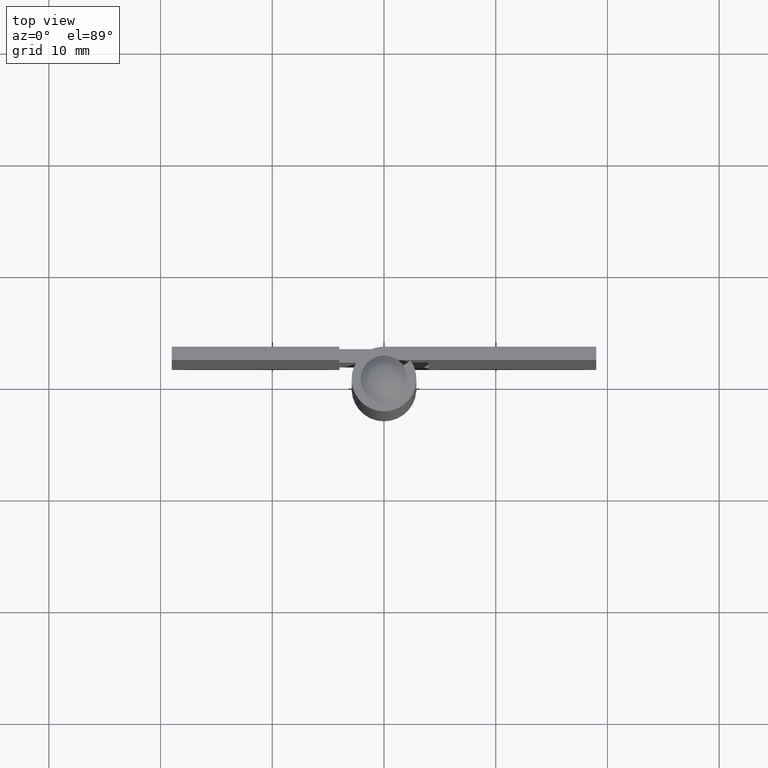
[diagram: clean part render]
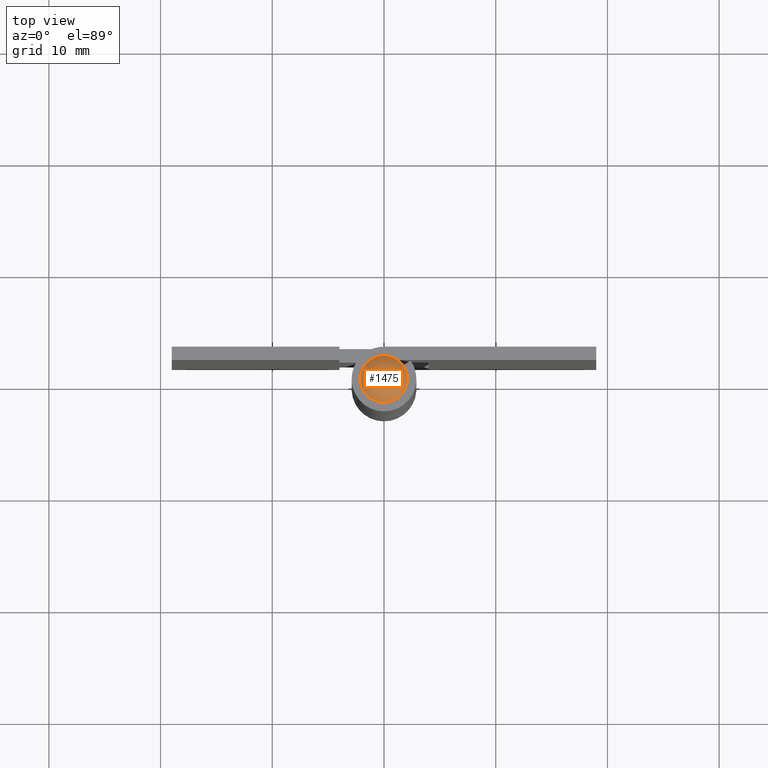
[diagram: same view with one face highlighted and labeled with its STEP entity id]
A machine part, top view. The second image highlights one B-rep face of the part: STEP entity #1475.
In plain terms, the highlighted face is a freeform B-spline surface patch.
Its self-contained STEP definition (entity closure, byte-faithful):
#1394=CARTESIAN_POINT('',(-2.100000000000085,0.0,51.0));
#1395=VERTEX_POINT('',#1394);
#1396=CARTESIAN_POINT('',(2.100000000000085,0.0,51.0));
#1397=VERTEX_POINT('',#1396);
#1398=CARTESIAN_POINT('',(-2.100000000000085,0.0,51.0));
#1399=CARTESIAN_POINT('',(-2.100034678902667,0.163208276225460,51.000000000000057));
#1400=CARTESIAN_POINT('',(-2.062761585552487,0.481036116554615,50.999999999999851));
#1401=CARTESIAN_POINT('',(-1.923009084606164,0.871632128979982,51.000000000000128));
#1402=CARTESIAN_POINT('',(-1.721382886219726,1.222506502784351,50.999999999999943));
#1403=CARTESIAN_POINT('',(-1.426507514003125,1.573064050045721,50.999999999999758));
#1404=CARTESIAN_POINT('',(-1.036037756864323,1.848075886834001,51.000000000000313));
#1405=CARTESIAN_POINT('',(-0.604962322977016,2.023457375339177,50.999999999999197));
#1406=CARTESIAN_POINT('',(-0.241174619572601,2.098146021491028,51.000000000001357));
#1407=CARTESIAN_POINT('',(0.198247825253177,2.106254725817261,50.999999999998543));
#1408=CARTESIAN_POINT('',(0.674555920813944,2.014609814077912,51.000000000001542));
#1409=CARTESIAN_POINT('',(1.126405342635114,1.794038216096144,50.999999999998458));
#1410=CARTESIAN_POINT('',(1.488298461071748,1.500684704819661,51.000000000000448));
#1411=CARTESIAN_POINT('',(1.775374147970063,1.155270277954513,50.999999999999801));
#1412=CARTESIAN_POINT('',(2.028364284102181,0.652767220089119,51.000000000000242));
#1413=CARTESIAN_POINT('',(2.100157262791230,0.240546537586654,50.999999999999922));
#1414=CARTESIAN_POINT('',(2.100000000000085,0.0,51.0));
#1415=B_SPLINE_CURVE_WITH_KNOTS('',3,(#1398,#1399,#1400,#1401,#1402,#1403,#1404,#1405,#1406,#1407,#1408,#1409,#1410,#1411,#1412,#1413,#1414),.UNSPECIFIED.,.F.,.U.,(4,1,1,1,1,1,1,1,1,1,1,1,1,1,4),(0.000000200152500,0.489620158104607,0.953528307319703,1.236999531046656,1.700890262782826,2.319397492945477,2.654429166089770,3.092555553377651,3.427519133557969,3.968714547760516,4.535692229118697,4.922268901152165,5.360380723225567,5.875800773812261,6.597385968137606),.UNSPECIFIED.);
#1416=EDGE_CURVE('',#1395,#1397,#1415,.T.);
#1418=CARTESIAN_POINT('',(2.100000000000085,0.0,51.0));
#1419=CARTESIAN_POINT('',(2.100040431680037,-0.171808534229808,50.999999999999943));
#1420=CARTESIAN_POINT('',(2.055491294446152,-0.532580012835292,51.000000000000249));
#1421=CARTESIAN_POINT('',(1.852764763824425,-1.039709429412700,50.999999999999417));
#1422=CARTESIAN_POINT('',(1.561367448953798,-1.427485730001923,51.000000000000533));
#1423=CARTESIAN_POINT('',(1.210854938582655,-1.733611062214587,50.999999999999488));
#1424=CARTESIAN_POINT('',(0.781622278920750,-1.976856590625556,51.000000000001009));
#1425=CARTESIAN_POINT('',(0.301493415022040,-2.097100874205621,50.999999999998181));
#1426=CARTESIAN_POINT('',(-0.120702356224151,-2.104782605310398,51.000000000001222));
#1427=CARTESIAN_POINT('',(-0.504788075814890,-2.052667111900635,50.999999999998678));
#1428=CARTESIAN_POINT('',(-0.938567235289093,-1.903461033420562,50.999999999999751));
#1429=CARTESIAN_POINT('',(-1.394186603959460,-1.603089786005243,51.000000000005620));
#1430=CARTESIAN_POINT('',(-1.744458614783030,-1.206930579005207,50.999999999996056));
#1431=CARTESIAN_POINT('',(-1.955374643758423,-0.800293704242032,51.000000000001293));
#1432=CARTESIAN_POINT('',(-2.073005646036604,-0.403725404055930,51.000000000000057));
#1433=CARTESIAN_POINT('',(-2.100022512699188,-0.146031049709772,50.999999999999922));
#1434=CARTESIAN_POINT('',(-2.100000000000085,0.0,51.0));
#1435=B_SPLINE_CURVE_WITH_KNOTS('',3,(#1418,#1419,#1420,#1421,#1422,#1423,#1424,#1425,#1426,#1427,#1428,#1429,#1430,#1431,#1432,#1433,#1434),.UNSPECIFIED.,.F.,.U.,(4,1,1,1,1,1,1,1,1,1,1,1,1,1,4),(0.000000200152321,0.515418583406504,1.082381071697063,1.623576543574685,1.958606557694611,2.474042116383720,3.092555553377511,3.427519133557845,3.736792163540744,4.252218301658665,4.793410673613654,5.360380723225548,5.824270162343453,6.159293499631367,6.597385968137610),.UNSPECIFIED.);
#1436=EDGE_CURVE('',#1397,#1395,#1435,.T.);
#1447=CARTESIAN_POINT('',(-1.829687983749170,-1.829687983749169,50.083358271503378));
#1448=CARTESIAN_POINT('',(-1.111784080818706,-2.223568161637412,50.835379703369405));
#1449=CARTESIAN_POINT('',(1.111784072329939,-2.223568161637412,50.835379703369405));
#1450=CARTESIAN_POINT('',(1.829687974728327,-1.829687988698483,50.083358280952936));
#1451=CARTESIAN_POINT('',(-2.223568161637413,-1.111784080818705,50.835379703369405));
#1452=CARTESIAN_POINT('',(-1.416775953504349,-1.416775953504348,52.000000000000007));
#1453=CARTESIAN_POINT('',(1.416775942686890,-1.416775953504348,52.0));
#1454=CARTESIAN_POINT('',(2.223568151969446,-1.111784084473490,50.835379717325310));
#1455=CARTESIAN_POINT('',(-2.223568161637413,1.111784072329940,50.835379703369405));
#1456=CARTESIAN_POINT('',(-1.416775953504349,1.416775942686890,52.0));
#1457=CARTESIAN_POINT('',(1.416775942686890,1.416775942686890,52.0));
#1458=CARTESIAN_POINT('',(2.223568151969446,1.111784075984724,50.835379717325303));
#1459=CARTESIAN_POINT('',(-1.829687988698483,1.829687974728327,50.083358280952922));
#1460=CARTESIAN_POINT('',(-1.111784084473491,2.223568151969448,50.835379717325310));
#1461=CARTESIAN_POINT('',(1.111784075984724,2.223568151969448,50.835379717325303));
#1462=CARTESIAN_POINT('',(1.829687979677641,1.829687979677641,50.083358290402472));
#1470=(BOUNDED_SURFACE()B_SPLINE_SURFACE(2,2,((#1447,#1451,#1455,#1459),(#1448,#1452,#1456,#1460),(#1449,#1453,#1457,#1461),(#1450,#1454,#1458,#1462)),.UNSPECIFIED.,.F.,.F.,.U.)B_SPLINE_SURFACE_WITH_KNOTS((3,1,3),(3,1,3),(0.0,2.491772285748188,4.983544552471029),(0.0,2.491772285748188,4.983544552471030),.UNSPECIFIED.)GEOMETRIC_REPRESENTATION_ITEM()RATIONAL_B_SPLINE_SURFACE(((1.548653066629720,1.274326533314860,1.274326533314860,1.548653062440607),(1.274326533314860,1.0,1.0,1.274326529125747),(1.274326533314860,1.0,1.0,1.274326529125747),(1.548653062440607,1.274326529125747,1.274326529125747,1.548653058251494)))REPRESENTATION_ITEM('')SURFACE());
#1471=ORIENTED_EDGE('',*,*,#1436,.F.);
#1472=ORIENTED_EDGE('',*,*,#1416,.F.);
#1473=EDGE_LOOP('',(#1471,#1472));
#1474=FACE_OUTER_BOUND('',#1473,.T.);
#1475=ADVANCED_FACE('',(#1474),#1470,.T.);